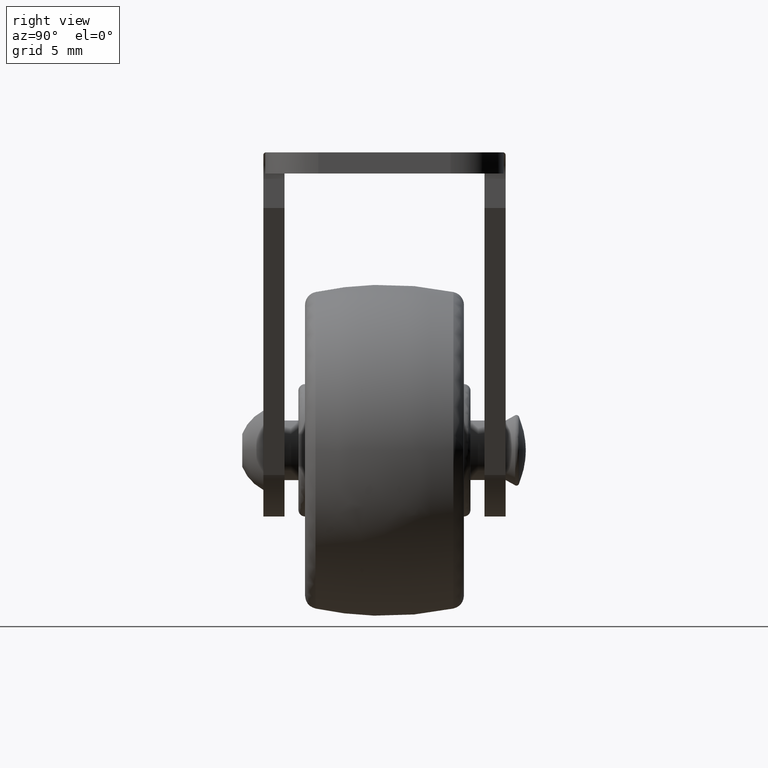
[diagram: clean part render]
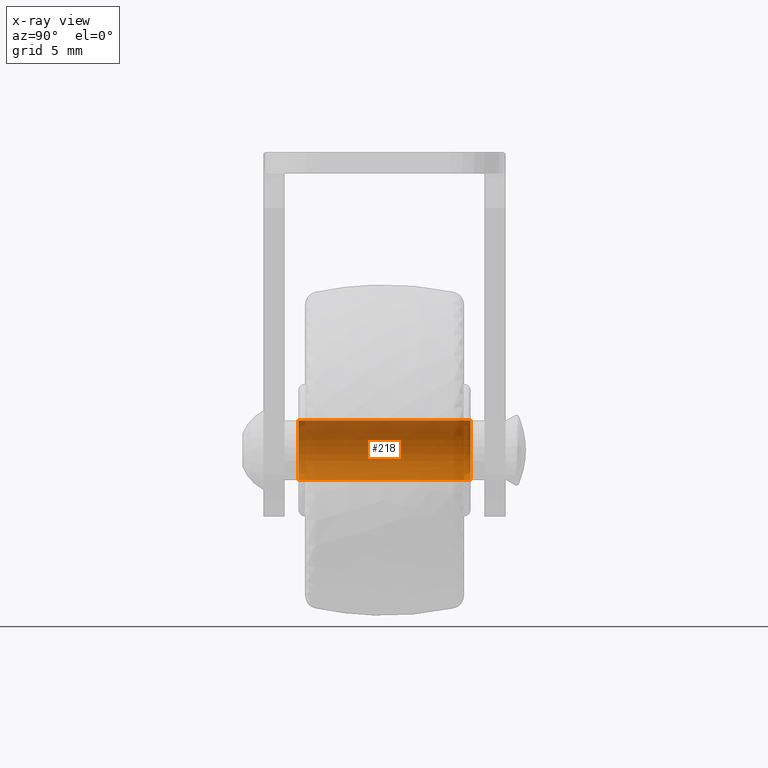
[diagram: x-ray — body ghosted, one internal face saturated and labeled with its STEP entity id]
A machine part, right view, then the same camera in x-ray: the body is ghosted and one INTERNAL B-rep face — a face not visible from any outside direction — is saturated and labeled: STEP entity #218.
In plain terms, the highlighted cylindrical surface (edge-blend (fillet) strip) has radius 2.25 mm, axis along (0, 1, 0).
Its self-contained STEP definition (entity closure, byte-faithful):
#218=ADVANCED_FACE('',(#946),#945,.F.);
#945=CYLINDRICAL_SURFACE('',#1620,2.25000000000E+00);
#946=FACE_OUTER_BOUND('',#1621,.T.);
#1617=CARTESIAN_POINT('',(0.00000000000E+00,9.93500000000E+02,0.00000000000E+00));
#1618=DIRECTION('',(-0.00000000000E+00,1.00000000000E+00,-0.00000000000E+00));
#1619=DIRECTION('',(1.22464679915E-16,0.00000000000E+00,-1.00000000000E+00));
#1620=AXIS2_PLACEMENT_3D('',#1617,#1618,#1619);
#1621=EDGE_LOOP('',(#2279,#2280,#2281,#2282));
#2279=ORIENTED_EDGE('',*,*,#2524,.T.);
#2280=ORIENTED_EDGE('',*,*,#2545,.T.);
#2281=ORIENTED_EDGE('',*,*,#2543,.F.);
#2282=ORIENTED_EDGE('',*,*,#2546,.F.);
#2524=EDGE_CURVE('',#3666,#3665,#3673,.T.);
#2543=EDGE_CURVE('',#3805,#3806,#3807,.T.);
#2545=EDGE_CURVE('',#3665,#3806,#3819,.T.);
#2546=EDGE_CURVE('',#3666,#3805,#3825,.T.);
#3665=VERTEX_POINT('',#4659);
#3666=VERTEX_POINT('',#4660);
#3673=CIRCLE('',#4668,2.25000000000E+00);
#3805=VERTEX_POINT('',#4759);
#3806=VERTEX_POINT('',#4760);
#3807=CIRCLE('',#4764,2.25000000000E+00);
#3819=(BOUNDED_CURVE() B_SPLINE_CURVE(1,(#4769,#4770),.UNSPECIFIED.,.F.,.F.) B_SPLINE_CURVE_WITH_KNOTS((2,2),(8.33333343261E-02,9.16666667006E-01),.UNSPECIFIED.) CURVE() GEOMETRIC_REPRESENTATION_ITEM() RATIONAL_B_SPLINE_CURVE((1.00000000000E+00,1.00000000000E+00)) REPRESENTATION_ITEM('') );
#3825=(BOUNDED_CURVE() B_SPLINE_CURVE(1,(#4771,#4772),.UNSPECIFIED.,.F.,.F.) B_SPLINE_CURVE_WITH_KNOTS((2,2),(8.33333333333E-02,9.16666666667E-01),.UNSPECIFIED.) CURVE() GEOMETRIC_REPRESENTATION_ITEM() RATIONAL_B_SPLINE_CURVE((7.50000000000E-01,7.50000000000E-01)) REPRESENTATION_ITEM('') );
#4659=CARTESIAN_POINT('',(5.18104078158E-16,-6.50000000000E+00,-2.25000000000E+00));
#4660=CARTESIAN_POINT('',(0.00000000000E+00,-6.50000000000E+00,2.25000000000E+00));
#4665=CARTESIAN_POINT('',(0.00000000000E+00,-6.50000000000E+00,0.00000000000E+00));
#4666=DIRECTION('',(-0.00000000000E+00,-1.00000000000E+00,0.00000000000E+00));
#4667=DIRECTION('',(-1.22460635382E-16,0.00000000000E+00,1.00000000000E+00));
#4668=AXIS2_PLACEMENT_3D('',#4665,#4666,#4667);
#4759=CARTESIAN_POINT('',(0.00000000000E+00,6.50000000000E+00,2.25000000000E+00));
#4760=CARTESIAN_POINT('',(5.18104078158E-16,6.50000000000E+00,-2.25000000000E+00));
#4761=CARTESIAN_POINT('',(0.00000000000E+00,6.50000000000E+00,0.00000000000E+00));
#4762=DIRECTION('',(-0.00000000000E+00,-1.00000000000E+00,0.00000000000E+00));
#4763=DIRECTION('',(-1.22460635382E-16,0.00000000000E+00,1.00000000000E+00));
#4764=AXIS2_PLACEMENT_3D('',#4761,#4762,#4763);
#4769=CARTESIAN_POINT('',(2.75545529808E-16,-6.49999998451E+00,-2.25000000000E+00));
#4770=CARTESIAN_POINT('',(2.75545529808E-16,6.50000000529E+00,-2.25000000000E+00));
#4771=CARTESIAN_POINT('',(-2.22044604925E-16,-6.50000000000E+00,2.25000000000E+00));
#4772=CARTESIAN_POINT('',(-2.22044604925E-16,6.50000000000E+00,2.25000000000E+00));